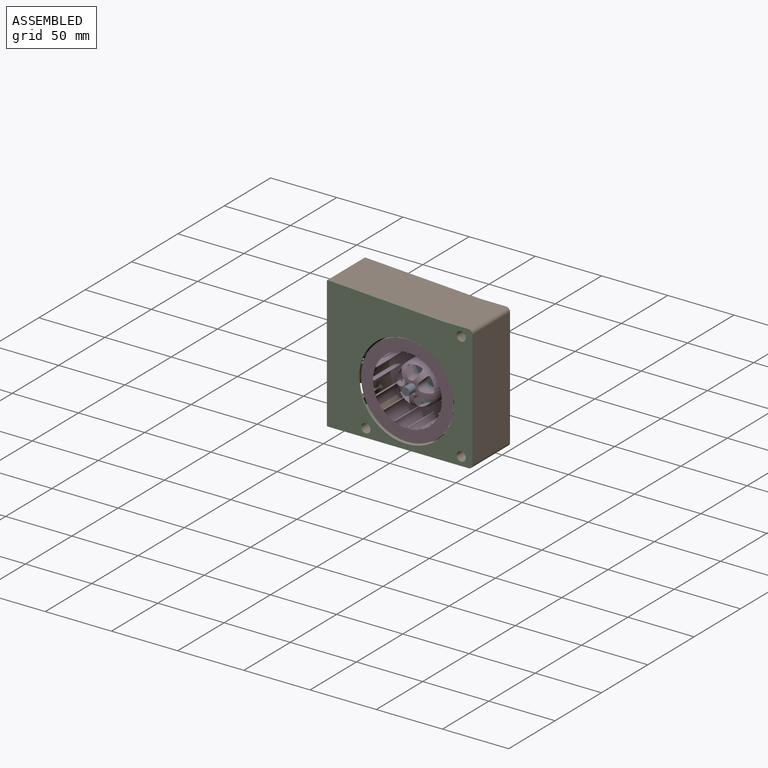
[diagram: assembled view]
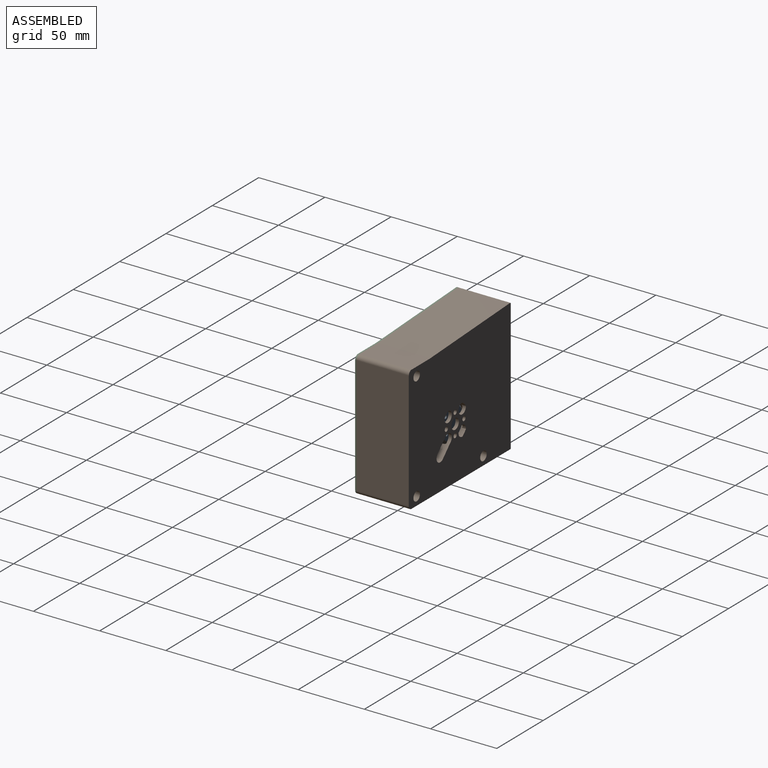
[diagram: assembled view, second angle]
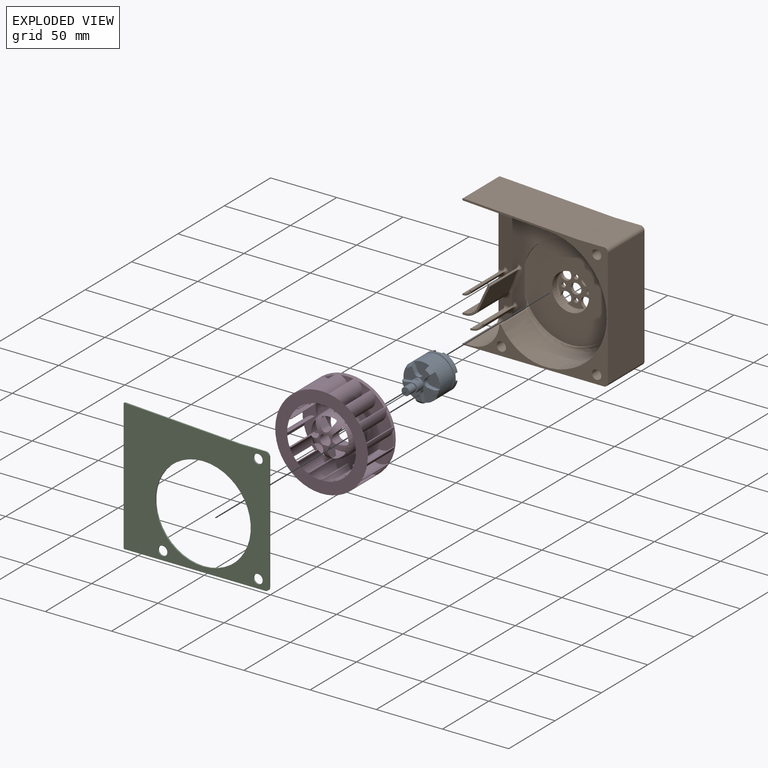
[diagram: exploded view]
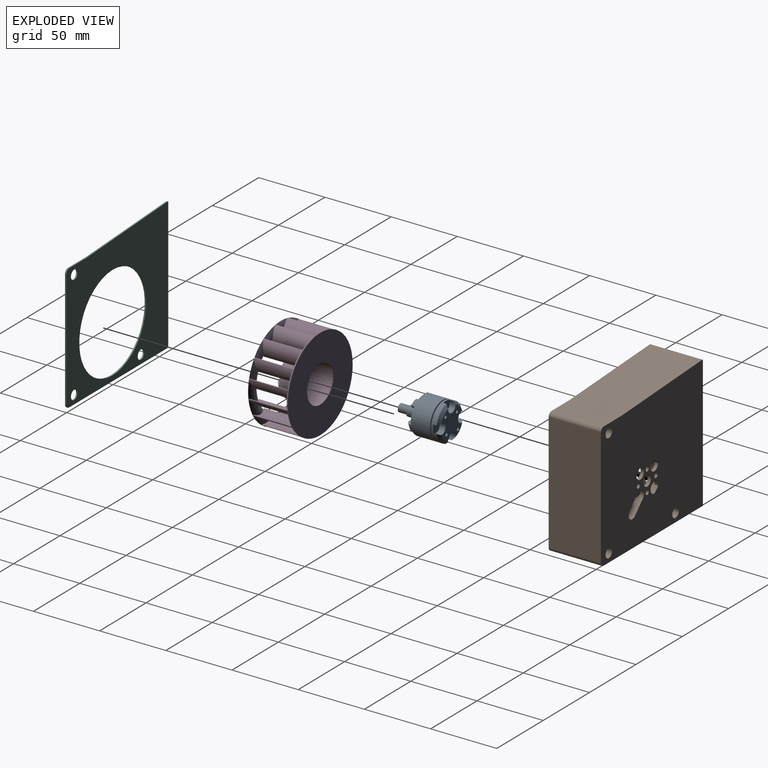
[diagram: exploded view, second angle]
ASSEMBLY  parts=4 mates=3
PART A: 58 faces, bbox 27.7x27.7x38.8 mm
  f0: cone r=13.85mm half-angle=45deg, axis (0,0,1), area 36.5mm2, adj f1,f4,f9,f10
  f1: cylinder r=4mm len=8mm, axis (0,0,-1), area 79.1mm2, adj f0,f2,f9,f10,f11
  f2: plane 8x7.1mm, normal (0,0,-1), area 46.7mm2, adj f1,f10
  f3: cone r=13.85mm half-angle=45deg, axis (0,0,1), area 36.5mm2, adj f4,f7,f9,f10
  f4: cylinder r=4mm len=8mm, axis (0,0,-1), area 79.1mm2, adj f0,f3,f5,f9,f10
  f5: plane 8x7.1mm, normal (0,0,-1), area 46.7mm2, adj f4,f10
  f6: cone r=13.85mm half-angle=45deg, axis (0,0,1), area 36.5mm2, adj f7,f9,f10,f57
  f7: cylinder r=4mm len=8mm, axis (0,0,-1), area 79.1mm2, adj f3,f6,f8,f9,f10
  f8: plane 8x7.1mm, normal (0,0,-1), area 46.7mm2, adj f7,f10
  f9: plane 22.32x22.32mm, normal (0,0,-1), area 293.1mm2, adj f0,f1,f3,f4,f6,f7,f11,f47
  f10: cylinder r=13.85mm len=27.7mm, axis (0,0,1), area 290.6mm2, adj f0,f1,f2,f3,f4,f5,f6,f7
  f11: cone r=13.85mm half-angle=45deg, axis (0,0,1), area 36.5mm2, adj f1,f9,f10,f57
  f12: cone r=11.85mm half-angle=45deg, axis (0,0,-1), area 14.3mm2, adj f13,f19,f32,f40
  f13: plane 6.71x3.5mm, normal (0.99,0.11,0), area 21.6mm2, adj f12,f15,f16,f32,f40
  f14: plane 4.98x4.56mm, normal (-0.74,0.67,0), area 21.6mm2, adj f15,f16,f32,f40,f45
  f15: cylinder r=3.3mm len=5.71mm, axis (0,0,1), area 26.4mm2, adj f13,f14,f16,f32
  f16: plane 11.02x9.73mm, normal (0,0,1), area 72.3mm2, adj f13,f14,f15,f40
  f17: cone r=11.85mm half-angle=45deg, axis (0,0,-1), area 14.3mm2, adj f18,f24,f32,f40
  f18: plane 6.62x3.5mm, normal (0.2,0.98,0), area 21.6mm2, adj f17,f20,f21,f32,f40
  f19: plane 5.87x3.5mm, normal (-0.87,-0.49,0), area 21.6mm2, adj f12,f20,f21,f32,f40
  f20: cylinder r=3.3mm len=4.92mm, axis (0,0,1), area 26.4mm2, adj f18,f19,f21,f32
  f21: plane 10.79x10.57mm, normal (0,0,1), area 72.3mm2, adj f18,f19,f20,f40
  f22: cone r=11.85mm half-angle=45deg, axis (0,0,-1), area 14.3mm2, adj f23,f29,f32,f40
  f23: plane 5.87x3.5mm, normal (-0.87,0.49,0), area 21.6mm2, adj f22,f25,f26,f32,f40
  f24: plane 6.62x3.5mm, normal (0.2,-0.98,0), area 21.6mm2, adj f17,f25,f26,f32,f40
  f25: cylinder r=3.3mm len=4.92mm, axis (0,0,1), area 26.4mm2, adj f23,f24,f26,f32
  f26: plane 10.79x10.57mm, normal (0,0,1), area 72.3mm2, adj f23,f24,f25,f40
  f27: cone r=11.85mm half-angle=45deg, axis (0,0,-1), area 14.3mm2, adj f28,f32,f40,f54
  f28: plane 4.98x4.56mm, normal (-0.74,-0.67,0), area 21.6mm2, adj f27,f30,f31,f32,f40
  f29: plane 6.71x3.5mm, normal (0.99,-0.11,0), area 21.6mm2, adj f22,f30,f31,f32,f40
  f30: cylinder r=3.3mm len=5.71mm, axis (0,0,1), area 26.4mm2, adj f28,f29,f31,f32
  f31: plane 11.02x9.73mm, normal (0,0,1), area 72.3mm2, adj f28,f29,f30,f40
  f32: plane 23.53x22.61mm, normal (0,0,1), area 140.4mm2, adj f12,f13,f14,f15,f17,f18,f19,f20
  f33: cylinder r=6.92mm len=13.85mm, axis (0,0,1), area 34.8mm2, adj f38,f39,f46,f48
  f34: cylinder r=4mm len=8mm, axis (0,0,1), area 135.5mm2, adj f32,f35,f41,f42,f43,f44
  f35: plane 8x7mm, normal (0,0,1), area 19.4mm2, adj f34,f36,f42,f43
  f36: cylinder r=3mm len=7mm, axis (0,0,1), area 131.9mm2, adj f35,f37
  f37: plane 6x6mm, normal (0,0,1), area 28.3mm2, adj f36
  f38: plane 27.7x27.7mm, normal (0,0,1), area 432.6mm2, adj f10,f33,f47,f49,f50,f51
  f39: plane 27.7x27.7mm, normal (0,0,-1), area 452mm2, adj f33,f40
  f40: cylinder r=13.85mm len=27.7mm, axis (0,0,1), area 1302.7mm2, adj f12,f13,f14,f16,f17,f18,f19,f21
  f41: plane 3.87x0.5mm, normal (0,0,1), area 1.3mm2, adj f34,f42
  f42: plane 5x3.87mm, normal (1,0,0), area 19.4mm2, adj f34,f35,f41
  f43: plane 5x3.87mm, normal (-1,0,0), area 19.4mm2, adj f34,f35,f44
  f44: plane 3.87x0.5mm, normal (0,0,1), area 1.3mm2, adj f34,f43
  f45: cone r=11.85mm half-angle=45deg, axis (0,0,-1), area 14.3mm2, adj f14,f32,f40,f53
  f46: cone r=0mm half-angle=59deg, axis (0,0,-1), area 0.2mm2, adj f33,f47
  f47: cylinder r=1.25mm len=6mm, axis (0,0,-1), area 47.1mm2, adj f9,f38,f46
  f48: cone r=0mm half-angle=59deg, axis (0,0,-1), area 0.2mm2, adj f33,f49
  f49: cylinder r=1.25mm len=6mm, axis (0,0,-1), area 47.1mm2, adj f9,f38,f48
  f50: cylinder r=1.25mm len=6mm, axis (0,0,-1), area 47.1mm2, adj f9,f38
  f51: cylinder r=1.25mm len=6mm, axis (0,0,-1), area 47.1mm2, adj f9,f38
  f52: plane 11.59x9.35mm, normal (0,0,1), area 72.3mm2, adj f40,f53,f54,f55
  f53: plane 6.15x3.5mm, normal (0.41,-0.91,0), area 21.6mm2, adj f32,f40,f45,f52,f55
  f54: plane 6.15x3.5mm, normal (0.41,0.91,0), area 21.6mm2, adj f27,f32,f40,f52,f55
  f55: cylinder r=3.3mm len=6mm, axis (0,0,1), area 26.4mm2, adj f32,f52,f53,f54
  f56: plane 8x7.1mm, normal (0,0,-1), area 46.7mm2, adj f10,f57
  f57: cylinder r=4mm len=8mm, axis (0,0,-1), area 79.1mm2, adj f6,f9,f10,f11,f56
PART B: 113 faces, bbox 116.1x40.6x103.2 mm
  f0: cylinder r=14mm len=28mm, axis (0,-1,0), area 462.6mm2, adj f3,f4,f10,f60,f61,f62,f63,f64
  f1: cylinder r=40mm len=79.64mm, axis (0,0,-1), area 500mm2, adj f7,f12,f13,f77,f81,f111,f112
  f2: torus R=18mm, axis (0,1,0), area 13mm2, adj f3,f4,f67,f111
  f3: bspline ~7.75x7.04mm, area 24.5mm2, adj f0,f2,f68,f72,f111
  f4: bspline ~7.75x7.04mm, area 24.5mm2, adj f0,f2,f69,f74,f111
  f5: torus R=35.36mm, axis (0,-1,0), area 85.4mm2, adj f6,f27,f80,f112
  f6: bspline ~14.29x11.05mm, area 10.1mm2, adj f5,f7,f27,f112
  f7: bspline ~6.75x4.22mm, area 10.3mm2, adj f1,f6,f32,f81,f112
  f8: bspline ~1.24x1.07mm, area 0.3mm2, adj f14,f56,f100
  f9: bspline ~1.24x1.07mm, area 0.3mm2, adj f14,f56,f103
  f10: plane 110x99.96mm, normal (0,1,0), area 10173.9mm2, adj f0,f11,f14,f15,f16,f17,f18,f19
  f11: cylinder r=4mm len=6.83mm, axis (0,-1,0), area 31.4mm2, adj f10,f36,f68,f69
  f12: plane 92.19x24.11mm, normal (-0.3,-0.95,0), area 1895.2mm2, adj f1,f14,f75,f76,f82,f83,f84,f89
  f13: plane 88.78x69.93mm, normal (0,-1,0), area 1646.9mm2, adj f1,f78,f79,f80,f112
  f14: plane 99.54x40.48mm, normal (-1,0,0), area 62.5mm2, adj f8,f9,f10,f12,f28,f29,f31,f33
  f15: plane 106.3x39.5mm, normal (0,0,-1), area 4198.9mm2, adj f10,f28,f29,f34
  f16: plane 89x39.5mm, normal (1,0,0), area 3515.5mm2, adj f10,f28,f34,f35
  f17: plane 39.5x18.91mm, normal (0,0,1), area 747mm2, adj f10,f28,f35,f59
  f18: cylinder r=3.5mm len=39.5mm, axis (0,1,0), area 868.7mm2, adj f10,f28
  f19: cylinder r=3.5mm len=39.5mm, axis (0,1,0), area 868.7mm2, adj f10,f28
  f20: plane 86.21x39.5mm, normal (0.06,0,1), area 3410.7mm2, adj f10,f28,f33,f59
  f21: cylinder r=3.5mm len=39.5mm, axis (0,1,0), area 868.7mm2, adj f10,f28
  f22: cylinder r=21.5mm len=33.79mm, axis (0,1,0), area 976.4mm2, adj f23,f28,f32,f81,f82
  f23: plane 35.63x5.8mm, normal (0,0,1), area 201.5mm2, adj f22,f28,f30,f83
  f24: plane 63.86x35.7mm, normal (-0.06,0,-1), area 1831.2mm2, adj f25,f28,f31,f76,f77,f78
  f25: cylinder r=47.29mm len=54.81mm, axis (0,1,0), area 2099.3mm2, adj f24,f26,f28,f79
  f26: cylinder r=45.87mm len=48.5mm, axis (0,1,0), area 1798.8mm2, adj f25,f27,f28,f80
  f27: cylinder r=38.36mm len=30.75mm, axis (0,1,0), area 1006.1mm2, adj f5,f6,f26,f28,f32
  f28: plane 110x99.96mm, normal (0,-1,0), area 1477.1mm2, adj f14,f15,f16,f17,f18,f19,f20,f21
  f29: cylinder r=0.7mm len=39.5mm, axis (0,1,0), area 35.9mm2, adj f10,f14,f15,f28,f30,f84
  f30: cylinder r=0.7mm len=36.75mm, axis (0,1,0), area 32.5mm2, adj f23,f28,f29,f84
  f31: cylinder r=0.7mm len=36.8mm, axis (0,-1,0), area 38.4mm2, adj f14,f24,f28,f75
  f32: cylinder r=0.7mm len=27.99mm, axis (0,1,0), area 48.8mm2, adj f7,f22,f27,f28
  f33: cylinder r=0.7mm len=39.5mm, axis (0,-1,0), area 45mm2, adj f10,f14,f20,f28
  f34: cylinder r=3mm len=39.5mm, axis (0,-1,0), area 186.1mm2, adj f10,f15,f16,f28
  f35: cylinder r=3mm len=39.5mm, axis (0,1,0), area 186.1mm2, adj f10,f16,f17,f28
  f36: plane 26x26mm, normal (0,-1,0), area 279.7mm2, adj f11,f37,f38,f39,f40,f60,f61,f62
  f37: cylinder r=1.7mm len=3.4mm, axis (0,-1,0), area 26.7mm2, adj f10,f36
  f38: cylinder r=1.7mm len=3.4mm, axis (0,-1,0), area 26.7mm2, adj f10,f36
  f39: cylinder r=1.7mm len=3.4mm, axis (0,-1,0), area 26.7mm2, adj f10,f36
  f40: cylinder r=1.7mm len=3.4mm, axis (0,-1,0), area 26.7mm2, adj f10,f36
  f41: plane 10.47x6.88mm, normal (0,-1,0), area 14.9mm2, adj f42,f43,f44,f45
  f42: cylinder r=9.8mm len=34.84mm, axis (0,1,0), area 363.6mm2, adj f41,f43,f45,f107
  f43: cylinder r=0.6mm len=35.67mm, axis (0,1,0), area 66.7mm2, adj f41,f42,f44,f109
  f44: cylinder r=11mm len=34.84mm, axis (0,1,0), area 399.2mm2, adj f41,f43,f45,f110
  f45: cylinder r=0.6mm len=32.64mm, axis (0,1,0), area 60.1mm2, adj f41,f42,f44,f108
  f46: plane 25.17x20.64mm, normal (0,-1,0), area 50.9mm2, adj f14,f47,f48,f49,f50,f51,f52,f53
  f47: plane 36.68x1.3mm, normal (0,0,-1), area 47.4mm2, adj f46,f48,f88,f98
  f48: cylinder r=11.5mm len=36.27mm, axis (0,1,0), area 447.9mm2, adj f46,f47,f49,f97
  f49: plane 32.39x17.49mm, normal (0.91,0,-0.42), area 600.3mm2, adj f46,f48,f85,f96
  f50: plane 30.25x0.09mm, normal (0.42,0,0.91), area 3mm2, adj f46,f85,f86,f94
  f51: plane 33.97x17.49mm, normal (-0.91,0,0.42), area 630.8mm2, adj f46,f52,f86,f92
  f52: cylinder r=10mm len=36.27mm, axis (0,1,0), area 398.4mm2, adj f46,f51,f53,f91
  f53: plane 36.68x1.3mm, normal (0,0,1), area 47.4mm2, adj f46,f52,f87,f90
  f54: plane 7x4.9mm, normal (0,-1,0), area 9.8mm2, adj f55,f56,f57,f58
  f55: cylinder r=5.8mm len=36.71mm, axis (0,1,0), area 238mm2, adj f54,f56,f58,f102
  f56: cylinder r=0.6mm len=39mm, axis (0,1,0), area 70.9mm2, adj f8,f9,f54,f55,f57,f100,f101,f103
  f57: cylinder r=7mm len=36.71mm, axis (0,1,0), area 281.3mm2, adj f54,f56,f58,f106
  f58: cylinder r=0.6mm len=35.62mm, axis (0,1,0), area 65.7mm2, adj f54,f55,f57,f104
  f59: cylinder r=20mm len=39.5mm, axis (0,-1,0), area 45.1mm2, adj f10,f17,f20,f28
  f60: cylinder r=4mm len=8mm, axis (0,-1,0), area 49.9mm2, adj f0,f10,f36,f64,f65
  f61: cylinder r=4mm len=8mm, axis (0,-1,0), area 49.9mm2, adj f0,f10,f36,f63,f64
  f62: cylinder r=4mm len=8mm, axis (0,-1,0), area 49.9mm2, adj f0,f10,f36,f63,f66
  f63: torus R=13mm, axis (0,-1,0), area 23.6mm2, adj f0,f36,f61,f62
  f64: torus R=13mm, axis (0,-1,0), area 23.6mm2, adj f0,f36,f60,f61
  f65: torus R=13mm, axis (0,-1,0), area 22.2mm2, adj f0,f36,f60,f68
  f66: torus R=13mm, axis (0,-1,0), area 22.2mm2, adj f0,f36,f62,f69
  f67: plane 5.09x5.09mm, normal (0,1,0), area 11.1mm2, adj f2,f72,f73,f74
  f68: plane 8.62x8.62mm, normal (0.71,0,0.71), area 28mm2, adj f0,f3,f10,f11,f36,f65,f70,f72
  f69: plane 8.62x8.62mm, normal (-0.71,0,-0.71), area 28mm2, adj f0,f4,f10,f11,f36,f66,f70,f74
  f70: cylinder r=4mm len=6.83mm, axis (0,1,0), area 25.1mm2, adj f10,f68,f69,f73
  f71: cylinder r=4mm len=8mm, axis (0,1,0), area 62.8mm2, adj f10,f36
  f72: cylinder r=3mm len=5.5mm, axis (-0.71,0,0.71), area 22.5mm2, adj f3,f67,f68,f73
  f73: torus R=1mm, axis (0,1,0), area 43.1mm2, adj f67,f70,f72,f74
  f74: cylinder r=3mm len=5.5mm, axis (0.71,0,-0.71), area 22.5mm2, adj f4,f67,f69,f73
  f75: bspline ~3.97x3.69mm, area 7.2mm2, adj f12,f14,f31,f76
  f76: cylinder r=3mm len=23.46mm, axis (-0.95,0.3,0.05), area 111.2mm2, adj f12,f24,f75,f77
  f77: bspline ~25.66x6.71mm, area 59.2mm2, adj f1,f24,f76,f78
  f78: cylinder r=3mm len=28.34mm, axis (-1,0,0.06), area 133mm2, adj f13,f24,f77,f79
  f79: torus R=44.29mm, axis (0,-1,0), area 364.7mm2, adj f13,f25,f78,f80
  f80: torus R=42.87mm, axis (0,-1,0), area 310.2mm2, adj f5,f13,f26,f79,f112
  f81: bspline ~11.92x4.77mm, area 29mm2, adj f1,f7,f22,f82
  f82: bspline ~19.4x13.53mm, area 99.9mm2, adj f12,f22,f81,f83
  f83: cylinder r=3mm len=6.71mm, axis (-0.95,0.3,0), area 28.7mm2, adj f12,f23,f82,f84
  f84: bspline ~4.26x4.21mm, area 7.2mm2, adj f12,f14,f29,f30,f83
  f85: cylinder r=0.7mm len=30.23mm, axis (0,1,0), area 33mm2, adj f46,f49,f50,f95
  f86: cylinder r=0.7mm len=31.39mm, axis (0,1,0), area 33.9mm2, adj f46,f50,f51,f93
  f87: cylinder r=0.7mm len=37.54mm, axis (0,1,0), area 40.8mm2, adj f14,f46,f53,f89
  f88: cylinder r=0.7mm len=37.54mm, axis (0,-1,0), area 40.8mm2, adj f14,f46,f47,f99
  f89: bspline ~2.82x2.8mm, area 4.3mm2, adj f12,f14,f87,f90
  f90: cylinder r=2mm len=2.32mm, axis (0.95,-0.3,0), area 4.3mm2, adj f12,f53,f89,f91
  f91: bspline ~9.06x6.62mm, area 30.3mm2, adj f12,f52,f90,f92
  f92: cylinder r=2mm len=18.34mm, axis (0.42,-0.13,0.9), area 50.4mm2, adj f12,f51,f91,f93
  f93: bspline ~3.59x3.04mm, area 7.4mm2, adj f12,f86,f92,f94
  f94: cylinder r=2mm len=1.95mm, axis (0.87,-0.28,-0.41), area 0.4mm2, adj f12,f50,f93,f95
  f95: bspline ~3.59x3.01mm, area 7.6mm2, adj f12,f85,f94,f96
  f96: cylinder r=2mm len=18.37mm, axis (-0.42,0.13,-0.9), area 72mm2, adj f12,f49,f95,f97
  f97: bspline ~15.3x9.83mm, area 49.4mm2, adj f12,f48,f96,f98
  f98: cylinder r=2mm len=2.32mm, axis (-0.95,0.3,0), area 4.3mm2, adj f12,f47,f97,f99
  f99: bspline ~2.76x2.7mm, area 4.3mm2, adj f12,f14,f88,f98
  f100: bspline ~2.06x1.91mm, area 1.3mm2, adj f8,f14,f56,f101
  f101: bspline ~2.29x2.07mm, area 2.2mm2, adj f12,f56,f100,f102
  f102: bspline ~5.26x4.19mm, area 16.4mm2, adj f12,f55,f101,f104
  f103: bspline ~2.06x1.91mm, area 1.3mm2, adj f9,f14,f56,f105
  f104: bspline ~4.96x3.7mm, area 14mm2, adj f12,f58,f102,f106
  f105: bspline ~2.29x2.07mm, area 2.2mm2, adj f12,f56,f103,f106
  f106: bspline ~8.76x6.07mm, area 31.2mm2, adj f12,f57,f104,f105
  f107: bspline ~8.73x6.26mm, area 28.9mm2, adj f12,f42,f108,f109
  f108: bspline ~4.92x3.78mm, area 14mm2, adj f12,f45,f107,f110
  f109: bspline ~5.2x2.73mm, area 13mm2, adj f12,f43,f107,f110
  f110: bspline ~12.19x8.04mm, area 45.9mm2, adj f12,f44,f108,f109
  f111: plane 72.01x70.68mm, normal (0,-1,0), area 3438.4mm2, adj f0,f1,f2,f3,f4,f112
  f112: cylinder r=36mm len=72mm, axis (0,1,0), area 322.9mm2, adj f1,f5,f6,f7,f13,f80,f111
PART C: 16 faces, bbox 110x1x100 mm
  f0: plane 98.56x1mm, normal (-1,0,0), area 98.6mm2, adj f1,f13,f14,f15
  f1: cylinder r=0.7mm len=1mm, axis (0,-1,0), area 1.1mm2, adj f0,f2,f14,f15
  f2: plane 106.3x1mm, normal (0,0,-1), area 106.3mm2, adj f1,f3,f14,f15
  f3: cylinder r=3mm len=3mm, axis (0,-1,0), area 4.7mm2, adj f2,f4,f14,f15
  f4: plane 89x1mm, normal (1,0,0), area 89mm2, adj f3,f5,f14,f15
  f5: cylinder r=3mm len=3mm, axis (0,-1,0), area 4.7mm2, adj f4,f6,f14,f15
  f6: plane 18.91x1mm, normal (0,0,1), area 18.9mm2, adj f5,f7,f14,f15
  f7: cylinder r=20mm len=1.14mm, axis (0,-1,0), area 1.1mm2, adj f6,f8,f14,f15
  f8: plane 86.21x4.93mm, normal (0.06,0,1), area 86.3mm2, adj f7,f13,f14,f15
  f9: cylinder r=36mm len=72mm, axis (0,-1,0), area 226.2mm2, adj f14,f15
  f10: cylinder r=3.5mm len=7mm, axis (0,-1,0), area 22mm2, adj f14,f15
  f11: cylinder r=3.5mm len=7mm, axis (0,-1,0), area 22mm2, adj f14,f15
  f12: cylinder r=3.5mm len=7mm, axis (0,-1,0), area 22mm2, adj f14,f15
  f13: cylinder r=0.7mm len=1mm, axis (0,-1,0), area 1.1mm2, adj f0,f8,f14,f15
  f14: plane 110x99.96mm, normal (0,1,0), area 6477.7mm2, adj f0,f1,f2,f3,f4,f5,f6,f7
  f15: plane 110x99.96mm, normal (0,-1,0), area 6477.7mm2, adj f0,f1,f2,f3,f4,f5,f6,f7
PART D: 151 faces, bbox 77.7x30.8x77.7 mm
  f0: cone r=35mm half-angle=45deg, axis (0,-1,0), area 16.8mm2, adj f66,f67,f88,f89,f120
  f1: cone r=35mm half-angle=45deg, axis (0,-1,0), area 16.8mm2, adj f66,f67,f90,f91,f122
  f2: cone r=35mm half-angle=45deg, axis (0,-1,0), area 16.8mm2, adj f66,f67,f92,f93,f124
  f3: cone r=35mm half-angle=45deg, axis (0,-1,0), area 16.8mm2, adj f66,f67,f94,f95,f126
  f4: cone r=35mm half-angle=45deg, axis (0,-1,0), area 16.8mm2, adj f66,f67,f96,f97,f128
  f5: cone r=35mm half-angle=45deg, axis (0,-1,0), area 16.8mm2, adj f66,f67,f98,f99,f130
  f6: cone r=35mm half-angle=45deg, axis (0,-1,0), area 16.8mm2, adj f66,f67,f100,f101,f132
  f7: cone r=35mm half-angle=45deg, axis (0,-1,0), area 16.8mm2, adj f66,f67,f102,f103,f134
  f8: cone r=35mm half-angle=45deg, axis (0,-1,0), area 16.8mm2, adj f66,f67,f104,f105,f136
  f9: cone r=35mm half-angle=45deg, axis (0,-1,0), area 16.8mm2, adj f66,f67,f106,f107,f138
  f10: cone r=35mm half-angle=45deg, axis (0,-1,0), area 16.8mm2, adj f66,f67,f108,f109,f140
  f11: cone r=35mm half-angle=45deg, axis (0,-1,0), area 16.8mm2, adj f66,f67,f110,f111,f142
  f12: cone r=35mm half-angle=45deg, axis (0,-1,0), area 16.8mm2, adj f66,f67,f112,f113,f144
  f13: cone r=35mm half-angle=45deg, axis (0,-1,0), area 16.8mm2, adj f66,f67,f114,f115,f146
  f14: cone r=35mm half-angle=45deg, axis (0,-1,0), area 16.8mm2, adj f66,f67,f85,f116,f148
  f15: cylinder r=15.5mm len=31mm, axis (0,1,0), area 1217.4mm2, adj f65,f150
  f16: plane 70x70mm, normal (0,-1,0), area 3223.9mm2, adj f18,f66
  f17: plane 11x10.9mm, normal (0,1,0), area 43.3mm2, adj f19,f20,f21,f24,f29,f34,f39,f44
  f18: cylinder r=14.1mm len=28.2mm, axis (0,1,0), area 1719.1mm2, adj f16,f25,f26,f30,f31,f35,f36,f40
  f19: plane 5.5x4.1mm, normal (0,0,1), area 22.6mm2, adj f17,f21,f64
  f20: plane 5.5x4.1mm, normal (0,0,-1), area 22.6mm2, adj f17,f21,f63
  f21: cylinder r=4.1mm len=8.2mm, axis (0,-1,0), area 158.8mm2, adj f17,f19,f20,f47,f63,f64
  f22: plane 7.9x5.44mm, normal (-0.17,0,0.99), area 35.4mm2, adj f24,f25,f47,f65
  f23: plane 7.9x4.03mm, normal (-0.72,0,-0.69), area 35.4mm2, adj f24,f26,f47,f65
  f24: cylinder r=3.4mm len=8mm, axis (0,1,0), area 58.2mm2, adj f17,f22,f23,f47,f65
  f25: cylinder r=1mm len=5.04mm, axis (0,1,0), area 6.5mm2, adj f18,f22,f47,f51,f52,f65
  f26: cylinder r=1mm len=5.04mm, axis (0,1,0), area 6.5mm2, adj f18,f23,f47,f48,f49,f65
  f27: plane 7.9x5.46mm, normal (-0.99,0,0.14), area 35.4mm2, adj f29,f30,f47,f65
  f28: plane 7.9x4.99mm, normal (0.43,0,-0.9), area 35.4mm2, adj f29,f31,f47,f65
  f29: cylinder r=3.4mm len=8mm, axis (0,1,0), area 58.2mm2, adj f17,f27,f28,f47,f65
  f30: cylinder r=1mm len=5.04mm, axis (0,1,0), area 6.5mm2, adj f18,f27,f47,f57,f58,f65
  f31: cylinder r=1mm len=5.04mm, axis (0,1,0), area 6.5mm2, adj f18,f28,f47,f52,f54,f65
  f32: plane 7.9x4.96mm, normal (-0.44,0,-0.9), area 35.4mm2, adj f34,f35,f47,f65
  f33: plane 7.9x5.47mm, normal (0.99,0,0.13), area 35.4mm2, adj f34,f36,f47,f65
  f34: cylinder r=3.4mm len=8mm, axis (0,1,0), area 58.2mm2, adj f17,f32,f33,f47,f65
  f35: cylinder r=1mm len=5.04mm, axis (0,1,0), area 6.5mm2, adj f18,f32,f47,f61,f62,f65
  f36: cylinder r=1mm len=5.04mm, axis (0,1,0), area 6.5mm2, adj f18,f33,f47,f58,f60,f65
  f37: plane 7.9x3.99mm, normal (0.72,0,-0.7), area 35.4mm2, adj f39,f40,f47,f65
  f38: plane 7.9x5.43mm, normal (0.18,0,0.98), area 35.4mm2, adj f39,f41,f47,f65
  f39: cylinder r=3.4mm len=8mm, axis (0,1,0), area 58.2mm2, adj f17,f37,f38,f47,f65
  f40: cylinder r=1mm len=5.04mm, axis (0,1,0), area 6.5mm2, adj f18,f37,f47,f55,f56,f65
  f41: cylinder r=1mm len=5.04mm, axis (0,1,0), area 6.5mm2, adj f18,f38,f47,f59,f61,f65
  f42: plane 7.9x4.9mm, normal (0.88,0,0.47), area 35.4mm2, adj f44,f45,f47,f65
  f43: plane 7.9x4.87mm, normal (-0.88,0,0.47), area 35.4mm2, adj f44,f46,f47,f65
  f44: cylinder r=3.4mm len=8mm, axis (0,1,0), area 58.2mm2, adj f17,f42,f43,f47,f65
  f45: cylinder r=1mm len=5.04mm, axis (0,1,0), area 6.5mm2, adj f18,f42,f47,f49,f50,f65
  f46: cylinder r=1mm len=5.04mm, axis (0,1,0), area 6.5mm2, adj f18,f43,f47,f53,f55,f65
  f47: plane 25.99x24.98mm, normal (0,-1,0), area 193.8mm2, adj f21,f22,f23,f24,f25,f26,f27,f28
  f48: bspline ~1.45x1.03mm, area 0.5mm2, adj f18,f26,f49
  f49: torus R=13.1mm, axis (0,-1,0), area 8.2mm2, adj f18,f26,f45,f47,f48,f50
  f50: bspline ~1.34x1.16mm, area 0.5mm2, adj f18,f45,f49
  f51: bspline ~1.25x1.1mm, area 0.5mm2, adj f18,f25,f52
  f52: torus R=13.1mm, axis (0,-1,0), area 8.2mm2, adj f18,f25,f31,f47,f51,f54
  f53: bspline ~1.34x1.1mm, area 0.5mm2, adj f18,f46,f55
  f54: bspline ~1.41x1.02mm, area 0.5mm2, adj f18,f31,f52
  f55: torus R=13.1mm, axis (0,-1,0), area 8.2mm2, adj f18,f40,f46,f47,f53,f56
  f56: bspline ~1.45x1.02mm, area 0.5mm2, adj f18,f40,f55
  f57: bspline ~1.24x1.04mm, area 0.5mm2, adj f18,f30,f58
  f58: torus R=13.1mm, axis (0,-1,0), area 8.2mm2, adj f18,f30,f36,f47,f57,f60
  f59: bspline ~1.19x1.1mm, area 0.5mm2, adj f18,f41,f61
  f60: bspline ~1.23x1.02mm, area 0.5mm2, adj f18,f36,f58
  f61: torus R=13.1mm, axis (0,-1,0), area 8.2mm2, adj f18,f35,f41,f47,f59,f62
  f62: bspline ~1.41x1.02mm, area 0.5mm2, adj f18,f35,f61
  f63: plane 4.1x0.55mm, normal (0,-1,0), area 1.5mm2, adj f20,f21
  f64: plane 4.1x0.55mm, normal (0,-1,0), area 1.5mm2, adj f19,f21
  f65: torus R=5.5mm, axis (0,-1,0), area 739.9mm2, adj f15,f17,f18,f22,f23,f24,f25,f26
  f66: cylinder r=35mm len=70mm, axis (0,-1,0), area 198.8mm2, adj f0,f1,f2,f3,f4,f5,f6,f7
  f67: plane 68x68mm, normal (0,1,0), area 2425.9mm2, adj f0,f1,f2,f3,f4,f5,f6,f7
  f68: cone r=35mm half-angle=45deg, axis (0,-1,0), area 16.8mm2, adj f66,f67,f86,f87,f117
  f69: cylinder r=0.4mm len=28.5mm, axis (0,-1,0), area 33mm2, adj f67,f85,f86,f118
  f70: cylinder r=0.4mm len=28.5mm, axis (0,-1,0), area 33mm2, adj f67,f87,f88,f118
  f71: cylinder r=0.4mm len=28.5mm, axis (0,-1,0), area 33mm2, adj f67,f89,f90,f118
  f72: cylinder r=0.4mm len=28.5mm, axis (0,-1,0), area 33mm2, adj f67,f91,f92,f118
  f73: cylinder r=0.4mm len=28.5mm, axis (0,-1,0), area 33mm2, adj f67,f93,f94,f118
  f74: cylinder r=0.4mm len=28.5mm, axis (0,-1,0), area 33mm2, adj f67,f95,f96,f118
  f75: cylinder r=0.4mm len=28.5mm, axis (0,-1,0), area 33mm2, adj f67,f97,f98,f118
  f76: cylinder r=0.4mm len=28.5mm, axis (0,-1,0), area 33mm2, adj f67,f99,f100,f118
  f77: cylinder r=0.4mm len=28.5mm, axis (0,-1,0), area 33mm2, adj f67,f101,f102,f118
  f78: cylinder r=0.4mm len=28.5mm, axis (0,-1,0), area 33mm2, adj f67,f103,f104,f118
  f79: cylinder r=0.4mm len=28.5mm, axis (0,-1,0), area 33mm2, adj f67,f105,f106,f118
  f80: cylinder r=0.4mm len=28.5mm, axis (0,-1,0), area 33mm2, adj f67,f107,f108,f118
  f81: cylinder r=0.4mm len=28.5mm, axis (0,-1,0), area 33mm2, adj f67,f109,f110,f118
  f82: cylinder r=0.4mm len=28.5mm, axis (0,-1,0), area 33mm2, adj f67,f111,f112,f118
  f83: cylinder r=0.4mm len=28.5mm, axis (0,-1,0), area 33mm2, adj f67,f113,f114,f118
  f84: cylinder r=0.4mm len=28.5mm, axis (0,-1,0), area 33mm2, adj f67,f115,f116,f118
  f85: cylinder r=8.54mm len=29.5mm, axis (0,-1,0), area 371.9mm2, adj f14,f66,f67,f69,f118,f149
  f86: cylinder r=10.85mm len=28.76mm, axis (0,-1,0), area 320.4mm2, adj f67,f68,f69,f117,f118,f119
  f87: cylinder r=8.54mm len=29.5mm, axis (0,-1,0), area 371.9mm2, adj f66,f67,f68,f70,f118,f119
  f88: cylinder r=10.85mm len=28.76mm, axis (0,-1,0), area 320.4mm2, adj f0,f67,f70,f118,f120,f121
  f89: cylinder r=8.54mm len=29.5mm, axis (0,-1,0), area 371.9mm2, adj f0,f66,f67,f71,f118,f121
  f90: cylinder r=10.85mm len=28.76mm, axis (0,-1,0), area 320.4mm2, adj f1,f67,f71,f118,f122,f123
  f91: cylinder r=8.54mm len=29.5mm, axis (0,-1,0), area 371.9mm2, adj f1,f66,f67,f72,f118,f123
  f92: cylinder r=10.85mm len=28.76mm, axis (0,-1,0), area 320.4mm2, adj f2,f67,f72,f118,f124,f125
  f93: cylinder r=8.54mm len=29.5mm, axis (0,-1,0), area 371.9mm2, adj f2,f66,f67,f73,f118,f125
  f94: cylinder r=10.85mm len=28.76mm, axis (0,-1,0), area 320.4mm2, adj f3,f67,f73,f118,f126,f127
  f95: cylinder r=8.54mm len=29.5mm, axis (0,-1,0), area 371.9mm2, adj f3,f66,f67,f74,f118,f127
  f96: cylinder r=10.85mm len=28.76mm, axis (0,-1,0), area 320.4mm2, adj f4,f67,f74,f118,f128,f129
  f97: cylinder r=8.54mm len=29.5mm, axis (0,-1,0), area 371.9mm2, adj f4,f66,f67,f75,f118,f129
  f98: cylinder r=10.85mm len=28.76mm, axis (0,-1,0), area 320.4mm2, adj f5,f67,f75,f118,f130,f131
  f99: cylinder r=8.54mm len=29.5mm, axis (0,-1,0), area 371.9mm2, adj f5,f66,f67,f76,f118,f131
  f100: cylinder r=10.85mm len=28.76mm, axis (0,-1,0), area 320.4mm2, adj f6,f67,f76,f118,f132,f133
  f101: cylinder r=8.54mm len=29.5mm, axis (0,-1,0), area 371.9mm2, adj f6,f66,f67,f77,f118,f133
  f102: cylinder r=10.85mm len=28.76mm, axis (0,-1,0), area 320.4mm2, adj f7,f67,f77,f118,f134,f135
  f103: cylinder r=8.54mm len=29.5mm, axis (0,-1,0), area 371.9mm2, adj f7,f66,f67,f78,f118,f135
  f104: cylinder r=10.85mm len=28.76mm, axis (0,-1,0), area 320.4mm2, adj f8,f67,f78,f118,f136,f137
  f105: cylinder r=8.54mm len=29.5mm, axis (0,-1,0), area 371.9mm2, adj f8,f66,f67,f79,f118,f137
  f106: cylinder r=10.85mm len=28.76mm, axis (0,-1,0), area 320.4mm2, adj f9,f67,f79,f118,f138,f139
  f107: cylinder r=8.54mm len=29.5mm, axis (0,-1,0), area 371.9mm2, adj f9,f66,f67,f80,f118,f139
  f108: cylinder r=10.85mm len=28.76mm, axis (0,-1,0), area 320.4mm2, adj f10,f67,f80,f118,f140,f141
  f109: cylinder r=8.54mm len=29.5mm, axis (0,-1,0), area 371.9mm2, adj f10,f66,f67,f81,f118,f141
  f110: cylinder r=10.85mm len=28.76mm, axis (0,-1,0), area 320.4mm2, adj f11,f67,f81,f118,f142,f143
  f111: cylinder r=8.54mm len=29.5mm, axis (0,-1,0), area 371.9mm2, adj f11,f66,f67,f82,f118,f143
  f112: cylinder r=10.85mm len=28.76mm, axis (0,-1,0), area 320.4mm2, adj f12,f67,f82,f118,f144,f145
  f113: cylinder r=8.54mm len=29.5mm, axis (0,-1,0), area 371.9mm2, adj f12,f66,f67,f83,f118,f145
  f114: cylinder r=10.85mm len=28.76mm, axis (0,-1,0), area 320.4mm2, adj f13,f67,f83,f118,f146,f147
  f115: cylinder r=8.54mm len=29.5mm, axis (0,-1,0), area 371.9mm2, adj f13,f66,f67,f84,f118,f147
  f116: cylinder r=10.85mm len=28.76mm, axis (0,-1,0), area 320.4mm2, adj f14,f67,f84,f118,f148,f149
  f117: cylinder r=0.4mm len=29.5mm, axis (0,-1,0), area 27.9mm2, adj f66,f68,f86,f119
  f118: plane 70x70mm, normal (0,1,0), area 1735.8mm2, adj f66,f69,f70,f71,f72,f73,f74,f75
  f119: torus R=30.5mm, axis (0,-1,0), area 98.2mm2, adj f86,f87,f117,f118
  f120: cylinder r=0.4mm len=29.5mm, axis (0,-1,0), area 27.9mm2, adj f0,f66,f88,f121
  f121: torus R=30.5mm, axis (0,-1,0), area 98.2mm2, adj f88,f89,f118,f120
  f122: cylinder r=0.4mm len=29.5mm, axis (0,-1,0), area 27.9mm2, adj f1,f66,f90,f123
  f123: torus R=30.5mm, axis (0,-1,0), area 98.2mm2, adj f90,f91,f118,f122
  f124: cylinder r=0.4mm len=29.5mm, axis (0,-1,0), area 27.9mm2, adj f2,f66,f92,f125
  f125: torus R=30.5mm, axis (0,-1,0), area 98.2mm2, adj f92,f93,f118,f124
  f126: cylinder r=0.4mm len=29.5mm, axis (0,-1,0), area 27.9mm2, adj f3,f66,f94,f127
  f127: torus R=30.5mm, axis (0,-1,0), area 98.2mm2, adj f94,f95,f118,f126
  f128: cylinder r=0.4mm len=29.5mm, axis (0,-1,0), area 27.9mm2, adj f4,f66,f96,f129
  f129: torus R=30.5mm, axis (0,-1,0), area 98.2mm2, adj f96,f97,f118,f128
  f130: cylinder r=0.4mm len=29.5mm, axis (0,-1,0), area 27.9mm2, adj f5,f66,f98,f131
  f131: torus R=30.5mm, axis (0,-1,0), area 98.2mm2, adj f98,f99,f118,f130
  f132: cylinder r=0.4mm len=29.5mm, axis (0,-1,0), area 27.9mm2, adj f6,f66,f100,f133
  f133: torus R=30.5mm, axis (0,-1,0), area 98.2mm2, adj f100,f101,f118,f132
  f134: cylinder r=0.4mm len=29.5mm, axis (0,-1,0), area 27.9mm2, adj f7,f66,f102,f135
  f135: torus R=30.5mm, axis (0,-1,0), area 98.2mm2, adj f102,f103,f118,f134
  f136: cylinder r=0.4mm len=29.5mm, axis (0,-1,0), area 27.9mm2, adj f8,f66,f104,f137
  f137: torus R=30.5mm, axis (0,-1,0), area 98.2mm2, adj f104,f105,f118,f136
  f138: cylinder r=0.4mm len=29.5mm, axis (0,-1,0), area 27.9mm2, adj f9,f66,f106,f139
  f139: torus R=30.5mm, axis (0,-1,0), area 98.2mm2, adj f106,f107,f118,f138
  f140: cylinder r=0.4mm len=29.5mm, axis (0,-1,0), area 27.9mm2, adj f10,f66,f108,f141
  f141: torus R=30.5mm, axis (0,-1,0), area 98.2mm2, adj f108,f109,f118,f140
  f142: cylinder r=0.4mm len=29.5mm, axis (0,-1,0), area 27.9mm2, adj f11,f66,f110,f143
  f143: torus R=30.5mm, axis (0,-1,0), area 98.2mm2, adj f110,f111,f118,f142
  f144: cylinder r=0.4mm len=29.5mm, axis (0,-1,0), area 27.9mm2, adj f12,f66,f112,f145
  f145: torus R=30.5mm, axis (0,-1,0), area 98.2mm2, adj f112,f113,f118,f144
  f146: cylinder r=0.4mm len=29.5mm, axis (0,-1,0), area 27.9mm2, adj f13,f66,f114,f147
  f147: torus R=30.5mm, axis (0,-1,0), area 98.2mm2, adj f114,f115,f118,f146
  f148: cylinder r=0.4mm len=29.5mm, axis (0,-1,0), area 27.9mm2, adj f14,f66,f116,f149
  f149: torus R=30.5mm, axis (0,-1,0), area 98.2mm2, adj f85,f116,f118,f148
  f150: torus R=17.5mm, axis (0,-1,0), area 320.3mm2, adj f15,f67
PLACE A rot(axis=(0.58,-0.58,0.58),120deg) t=(0,6,0)mm
PLACE B at identity fixed
PLACE C t=(0,2,0)mm
PLACE D rot(axis=(0,0,1),180deg) t=(0,-28.8,0)mm
MATE fastened A.f0 <-> D.f49  axis (0,-1,0) through (0,-18.8,0)mm
MATE fastened B.f71 <-> A.f0  axis (0,-1,0) through (0,6,0)mm
MATE fastened B.f18 <-> C.f10  axis (0,-1,0) through (-30.52,-31,-33.5)mm
